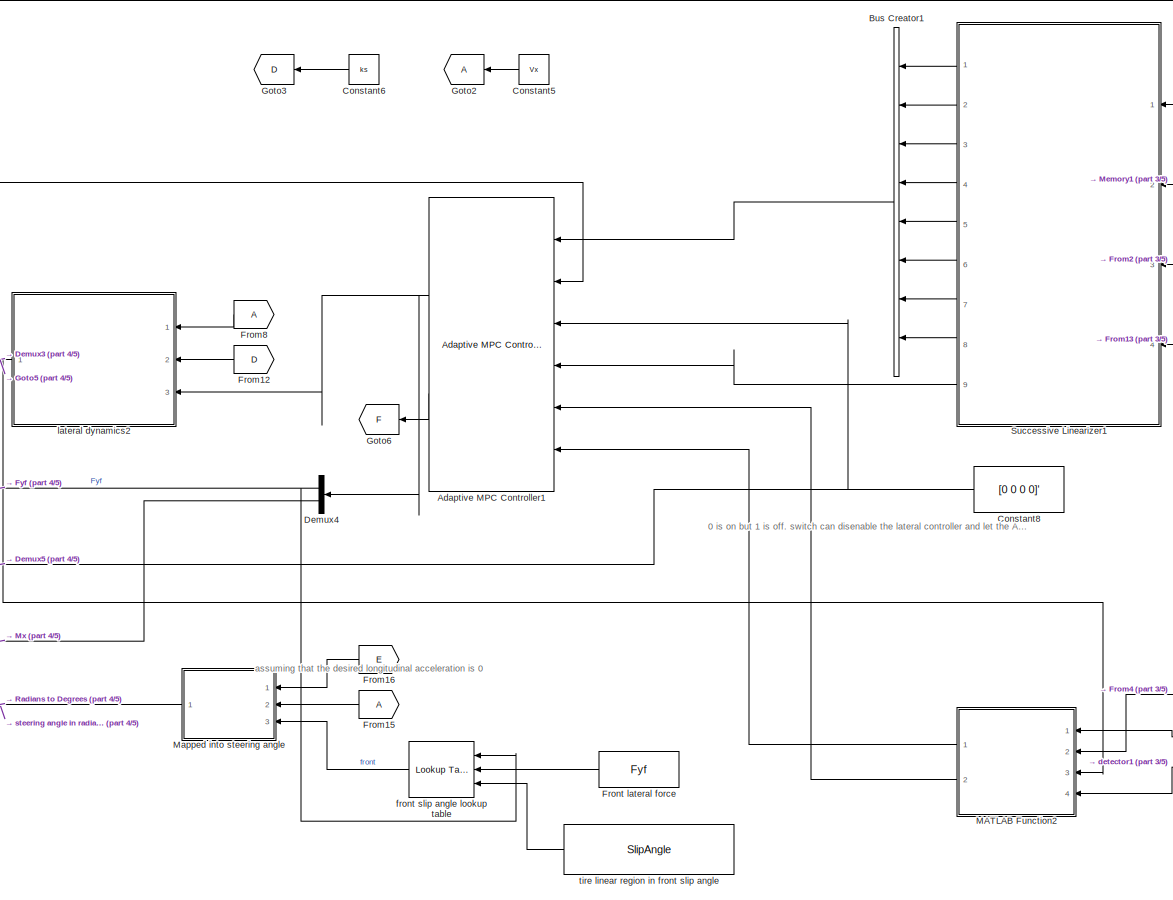
[diagram: root canvas - part 1/5, top right region]
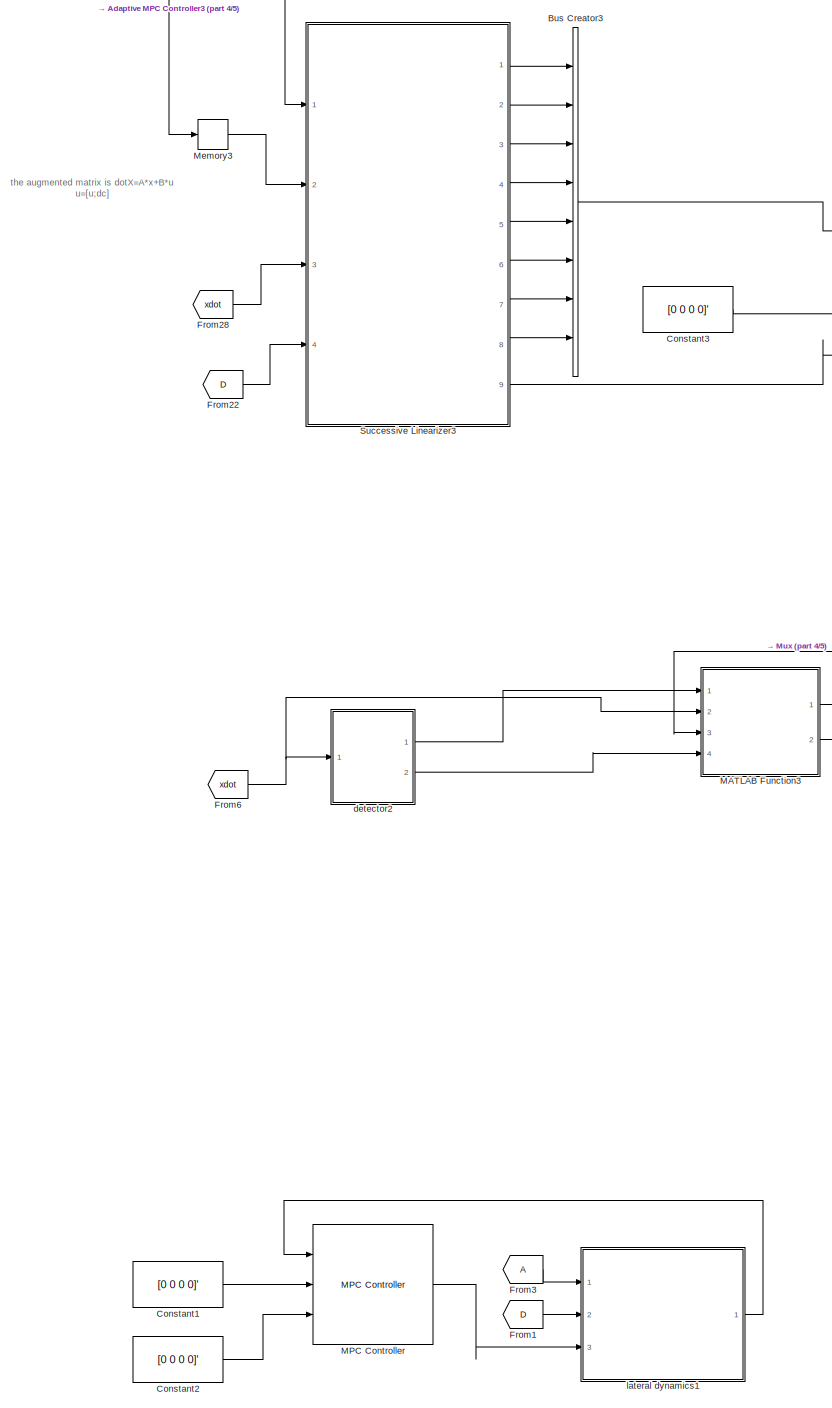
[diagram: root canvas - part 2/5, left side, full height]
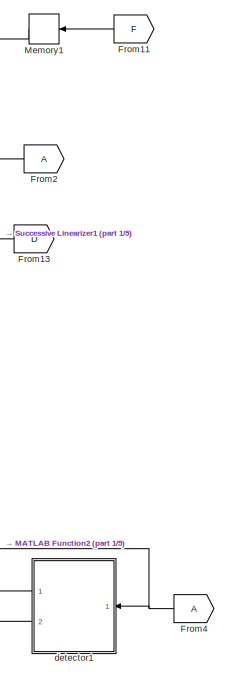
[diagram: root canvas - part 3/5, top right region]
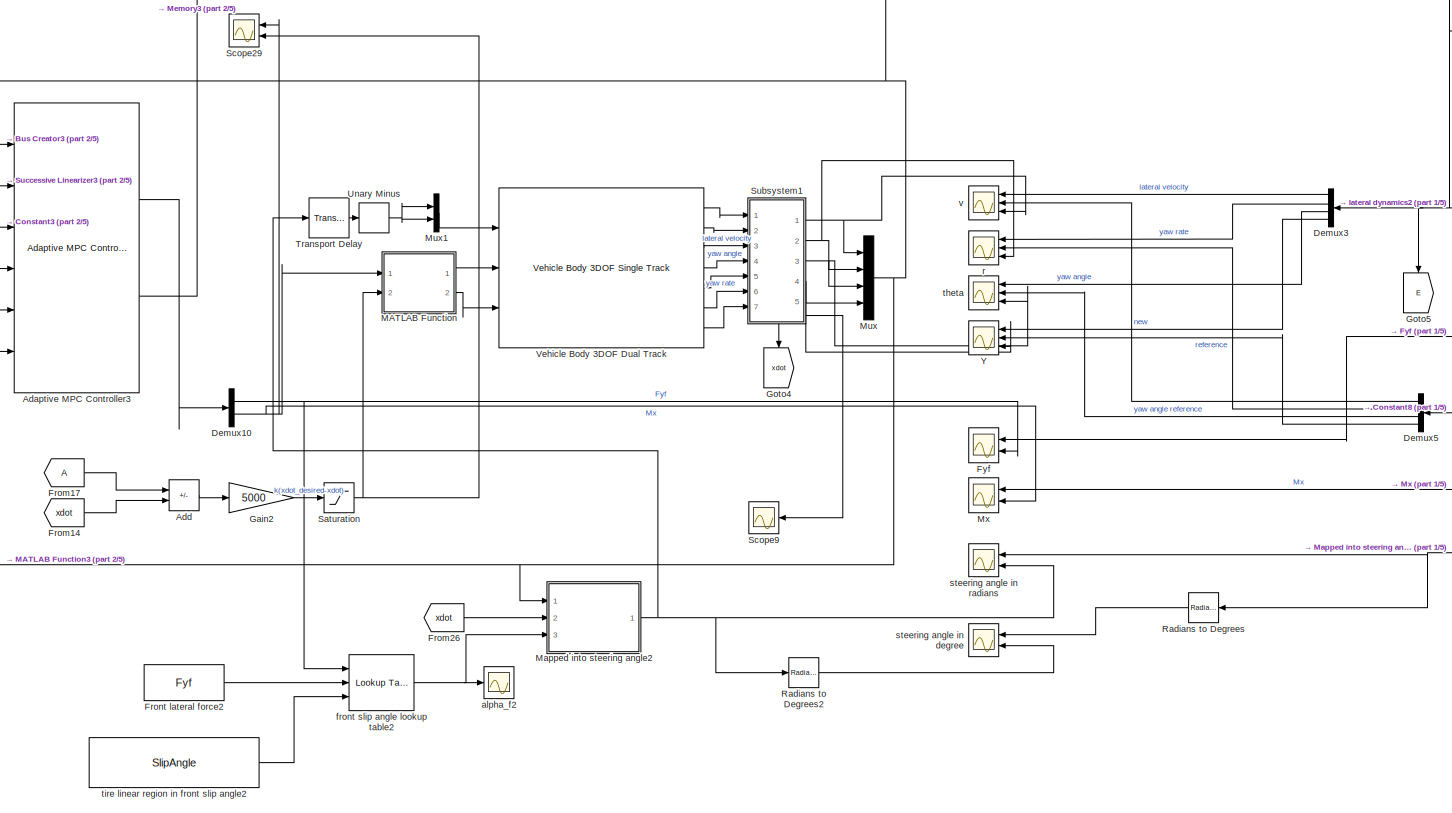
[diagram: root canvas - part 4/5, central region]
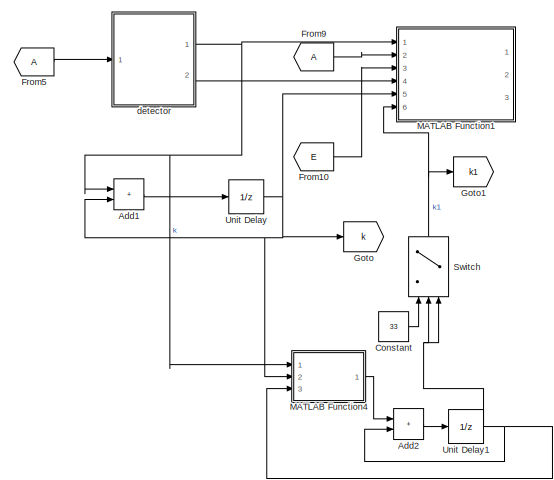
[diagram: root canvas - part 5/5, bottom center region]
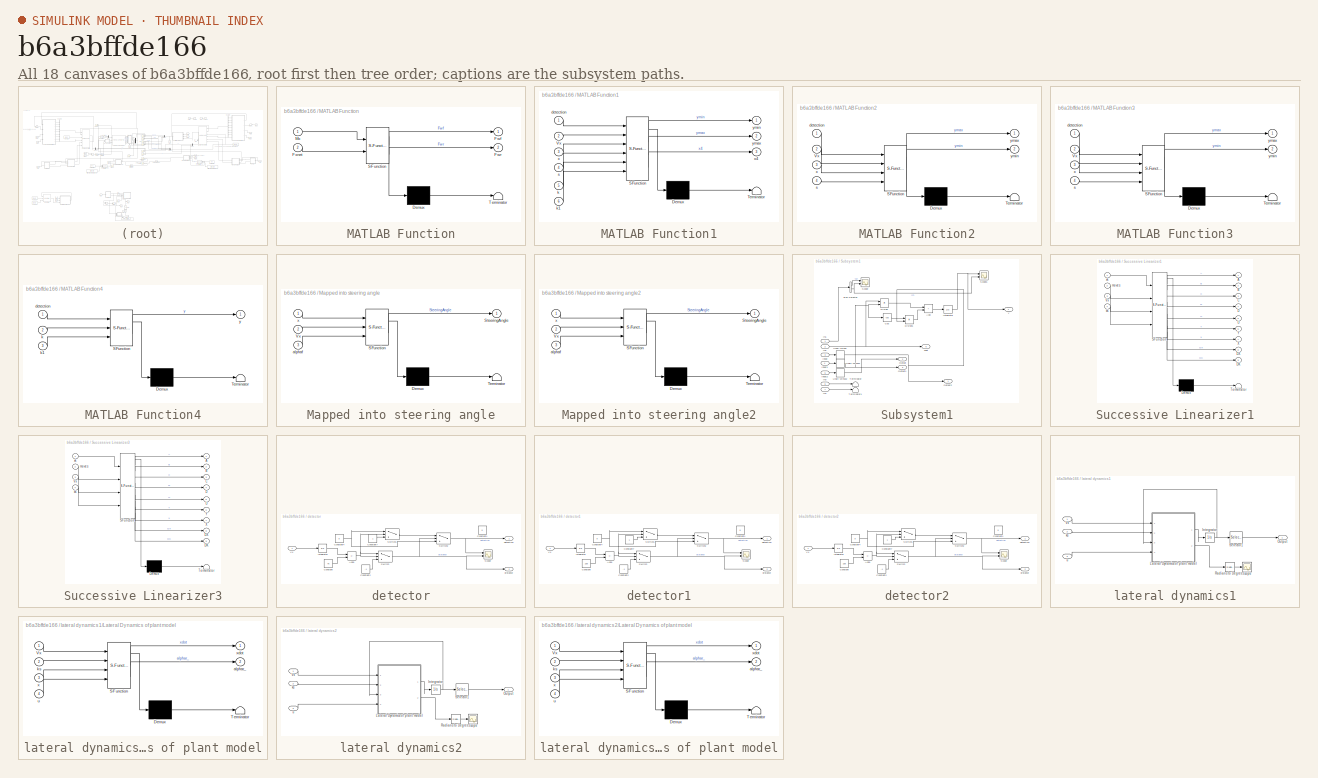
[diagram: thumbnail index - all 18 canvases of the model, root first then tree order]
MODEL slx_b6a3bffde166
KIND model
CONFIG AbsTol = auto
CONFIG EnableMultiTasking = off
CONFIG FixedStep = auto
CONFIG MaxStep = auto
CONFIG MinStep = auto
CONFIG RelTol = 1e-3
CONFIG SampleTimeConstraint = Unconstrained
CONFIG SolverName = VariableStepAuto
CONFIG StartTime = 0.0
CONFIG StopTime = 15
BLOCK [Reference] Adaptive MPC Controller1  REF=mpclib/Adaptive MPC Controller  (lib defined in mdl_ae329e0e0455)
  Ports = [6, 2]
  SCDEnableBlockLinearizationSpecification = on
  SourceBlock = mpclib/Adaptive MPC Controller
  SourceProductBaseCode = MP
  SourceType = Adaptive MPC
BLOCK [Reference] Adaptive MPC Controller3  REF=mpclib/Adaptive MPC Controller  (lib defined in mdl_ae329e0e0455)
  Ports = [6, 2]
  SCDEnableBlockLinearizationSpecification = on
  SourceBlock = mpclib/Adaptive MPC Controller
  SourceProductBaseCode = MP
  SourceType = Adaptive MPC
BLOCK [Sum] Add
  IconShape = rectangular
  Inputs = +-
  Ports = [2, 1]
BLOCK [Sum] Add1
  Commented = on
  IconShape = rectangular
  Ports = [2, 1]
BLOCK [Sum] Add2
  Commented = on
  IconShape = rectangular
  Ports = [2, 1]
BLOCK [BusCreator] Bus Creator1
  DisplayOption = bar
  InheritFromInputs = on
  Inputs = 8
  Ports = [8, 1]
BLOCK [BusCreator] Bus Creator3
  DisplayOption = bar
  InheritFromInputs = on
  Inputs = 8
  Ports = [8, 1]
BLOCK [Constant] Constant
  Commented = on
  Value = 33
BLOCK [Constant] Constant1
  Commented = on
  Value = [0 0 0 0]'
BLOCK [Constant] Constant2
  Commented = on
  Value = [0 0 0 0]'
BLOCK [Constant] Constant3
  Value = [0 0 0 0]'
BLOCK [Constant] Constant5
  Value = Vx
BLOCK [Constant] Constant6
  Value = ks
BLOCK [Constant] Constant8
  Value = [0 0 0 0]'
BLOCK [Demux] Demux10
  Outputs = 2
  Ports = [1, 2]
BLOCK [Demux] Demux3
  Ports = [1, 4]
BLOCK [Demux] Demux4
  Outputs = 2
  Ports = [1, 2]
BLOCK [Demux] Demux5
  Ports = [1, 4]
BLOCK [From] From1
  Commented = on
  GotoTag = D
BLOCK [From] From10
  Commented = on
  GotoTag = E
BLOCK [From] From11
  GotoTag = F
BLOCK [From] From12
  GotoTag = D
BLOCK [From] From13
  GotoTag = D
BLOCK [From] From14
  GotoTag = xdot
BLOCK [From] From15
BLOCK [From] From16
  GotoTag = E
BLOCK [From] From17
BLOCK [From] From2
BLOCK [From] From22
  GotoTag = D
BLOCK [From] From26
  GotoTag = xdot
BLOCK [From] From28
  GotoTag = xdot
BLOCK [From] From3
  Commented = on
BLOCK [From] From4
BLOCK [From] From5
  Commented = on
BLOCK [From] From6
  GotoTag = xdot
BLOCK [From] From8
BLOCK [From] From9
  Commented = on
BLOCK [Constant] Front lateral force
  Value = Fyf
BLOCK [Constant] Front lateral force2
  Value = Fyf
BLOCK [Scope] Fyf
  Floating = off
  NumInputPorts = 2
  Ports = [2]
  ScopeSpecificationString = Simulink.scopes.TimeScopeBlockCfg('CurrentConfiguration', extmgr.ConfigurationSet(extmgr.Configuration('Core','General UI',true),extmgr.Configuration('Core','Source UI',true),extmgr.Configuration('Sources','WiredSimulink',true,'DataLoggingVariableName','ScopeData2'),extmgr.Configuration('Visuals','Time Domain',true,'SerializedDisplays',{struct('MinYLimReal','-12500.00000','MaxYLimReal','12500.0000...<+1474ch>
BLOCK [Gain] Gain2
  Gain = 5000
BLOCK [Goto] Goto
  Commented = on
  GotoTag = k
BLOCK [Goto] Goto1
  Commented = on
  GotoTag = k1
BLOCK [Goto] Goto2
BLOCK [Goto] Goto3
  GotoTag = D
BLOCK [Goto] Goto4
  GotoTag = xdot
  NameLocation = left
BLOCK [Goto] Goto5
  GotoTag = E
  NameLocation = left
BLOCK [Goto] Goto6
  GotoTag = F
BLOCK [SubSystem] MATLAB Function
  ErrorFcn = Stateflow.Translate.translate
  PermitHierarchicalResolution = ExplicitOnly
  Ports = [2, 2]
  RequestExecContextInheritance = off
  SFBlockType = MATLAB Function
  TreatAsAtomicUnit = on
BLOCK [Demux] MATLAB Function/ Demux 
  Outputs = 1
  Ports = [1, 1]
BLOCK [S-Function] MATLAB Function/ SFunction 
  EnableBusSupport = on
  FunctionName = sf_sfun
  PortCounts = [2 3]
  Ports = [2, 3]
  SFcnIsStateOwnerBlock = off
  SFunctionDeploymentMode = off
  Tag = Stateflow S-Function 16
BLOCK [Terminator] MATLAB Function/ Terminator 
BLOCK [Outport] MATLAB Function/Fwf
BLOCK [Outport] MATLAB Function/Fwr
  Port = 2
BLOCK [Inport] MATLAB Function/Fxnet
  Port = 2
BLOCK [Inport] MATLAB Function/Mx
BLOCK [SubSystem] MATLAB Function1
  Commented = on
  ErrorFcn = Stateflow.Translate.translate
  PermitHierarchicalResolution = ExplicitOnly
  Ports = [6, 3]
  RequestExecContextInheritance = off
  SFBlockType = MATLAB Function
  TreatAsAtomicUnit = on
BLOCK [Demux] MATLAB Function1/ Demux 
  Outputs = 1
  Ports = [1, 1]
BLOCK [S-Function] MATLAB Function1/ SFunction 
  EnableBusSupport = on
  FunctionName = sf_sfun
  PortCounts = [6 4]
  Ports = [6, 4]
  SFcnIsStateOwnerBlock = off
  SFunctionDeploymentMode = off
  Tag = Stateflow S-Function 4
BLOCK [Terminator] MATLAB Function1/ Terminator 
BLOCK [Inport] MATLAB Function1/Vx
  Port = 2
BLOCK [Inport] MATLAB Function1/detection
BLOCK [Inport] MATLAB Function1/k
  Port = 5
BLOCK [Inport] MATLAB Function1/k1
  Port = 6
BLOCK [Inport] MATLAB Function1/s
  Port = 4
BLOCK [Inport] MATLAB Function1/x
  Port = 3
BLOCK [Outport] MATLAB Function1/x4
  Port = 3
BLOCK [Outport] MATLAB Function1/ymax
  Port = 2
BLOCK [Outport] MATLAB Function1/ymin
BLOCK [SubSystem] MATLAB Function2
  ErrorFcn = Stateflow.Translate.translate
  PermitHierarchicalResolution = ExplicitOnly
  Ports = [4, 2]
  RequestExecContextInheritance = off
  SFBlockType = MATLAB Function
  TreatAsAtomicUnit = on
BLOCK [Demux] MATLAB Function2/ Demux 
  Outputs = 1
  Ports = [1, 1]
BLOCK [S-Function] MATLAB Function2/ SFunction 
  EnableBusSupport = on
  FunctionName = sf_sfun
  Parameters = PredictionHorizon,Ts
  PortCounts = [4 3]
  Ports = [4, 3]
  SFcnIsStateOwnerBlock = off
  SFunctionDeploymentMode = off
  Tag = Stateflow S-Function 2
BLOCK [Terminator] MATLAB Function2/ Terminator 
BLOCK [Inport] MATLAB Function2/Vx
  Port = 2
BLOCK [Inport] MATLAB Function2/detection
BLOCK [Inport] MATLAB Function2/s
  Port = 4
BLOCK [Inport] MATLAB Function2/x
  Port = 3
BLOCK [Outport] MATLAB Function2/ymax
BLOCK [Outport] MATLAB Function2/ymin
  Port = 2
BLOCK [SubSystem] MATLAB Function3
  ErrorFcn = Stateflow.Translate.translate
  PermitHierarchicalResolution = ExplicitOnly
  Ports = [4, 2]
  RequestExecContextInheritance = off
  SFBlockType = MATLAB Function
  TreatAsAtomicUnit = on
BLOCK [Demux] MATLAB Function3/ Demux 
  Outputs = 1
  Ports = [1, 1]
BLOCK [S-Function] MATLAB Function3/ SFunction 
  EnableBusSupport = on
  FunctionName = sf_sfun
  Parameters = PredictionHorizon,Ts
  PortCounts = [4 3]
  Ports = [4, 3]
  SFcnIsStateOwnerBlock = off
  SFunctionDeploymentMode = off
  Tag = Stateflow S-Function 3
BLOCK [Terminator] MATLAB Function3/ Terminator 
BLOCK [Inport] MATLAB Function3/Vx
  Port = 2
BLOCK [Inport] MATLAB Function3/detection
BLOCK [Inport] MATLAB Function3/s
  Port = 4
BLOCK [Inport] MATLAB Function3/x
  Port = 3
BLOCK [Outport] MATLAB Function3/ymax
BLOCK [Outport] MATLAB Function3/ymin
  Port = 2
BLOCK [SubSystem] MATLAB Function4
  Commented = on
  ErrorFcn = Stateflow.Translate.translate
  PermitHierarchicalResolution = ExplicitOnly
  Ports = [3, 1]
  RequestExecContextInheritance = off
  SFBlockType = MATLAB Function
  TreatAsAtomicUnit = on
BLOCK [Demux] MATLAB Function4/ Demux 
  Outputs = 1
  Ports = [1, 1]
BLOCK [S-Function] MATLAB Function4/ SFunction 
  EnableBusSupport = on
  FunctionName = sf_sfun
  PortCounts = [3 2]
  Ports = [3, 2]
  SFcnIsStateOwnerBlock = off
  SFunctionDeploymentMode = off
  Tag = Stateflow S-Function 7
BLOCK [Terminator] MATLAB Function4/ Terminator 
BLOCK [Inport] MATLAB Function4/detection
BLOCK [Inport] MATLAB Function4/k
  Port = 2
BLOCK [Inport] MATLAB Function4/k1
  Port = 3
BLOCK [Outport] MATLAB Function4/y
BLOCK [Reference] MPC Controller  REF=mpclib/MPC Controller  (lib defined in mdl_ae329e0e0455)
  Commented = on
  Ports = [3, 1]
  SCDEnableBlockLinearizationSpecification = on
  SourceBlock = mpclib/MPC Controller
  SourceProductBaseCode = MP
  SourceType = MPC
BLOCK [SubSystem] Mapped into steering angle
  ErrorFcn = Stateflow.Translate.translate
  PermitHierarchicalResolution = ExplicitOnly
  Ports = [3, 1]
  RequestExecContextInheritance = off
  SFBlockType = MATLAB Function
  TreatAsAtomicUnit = on
BLOCK [Demux] Mapped into steering angle/ Demux 
  Outputs = 1
  Ports = [1, 1]
BLOCK [S-Function] Mapped into steering angle/ SFunction 
  EnableBusSupport = on
  FunctionName = sf_sfun
  PortCounts = [3 2]
  Ports = [3, 2]
  SFcnIsStateOwnerBlock = off
  SFunctionDeploymentMode = off
  Tag = Stateflow S-Function 11
BLOCK [Terminator] Mapped into steering angle/ Terminator 
BLOCK [Outport] Mapped into steering angle/SteeringAngle
BLOCK [Inport] Mapped into steering angle/Vx
  Port = 2
BLOCK [Inport] Mapped into steering angle/alphaf
  Port = 3
BLOCK [Inport] Mapped into steering angle/x
BLOCK [SubSystem] Mapped into steering angle2
  ErrorFcn = Stateflow.Translate.translate
  PermitHierarchicalResolution = ExplicitOnly
  Ports = [3, 1]
  RequestExecContextInheritance = off
  SFBlockType = MATLAB Function
  TreatAsAtomicUnit = on
BLOCK [Demux] Mapped into steering angle2/ Demux 
  Outputs = 1
  Ports = [1, 1]
BLOCK [S-Function] Mapped into steering angle2/ SFunction 
  EnableBusSupport = on
  FunctionName = sf_sfun
  PortCounts = [3 2]
  Ports = [3, 2]
  SFcnIsStateOwnerBlock = off
  SFunctionDeploymentMode = off
  Tag = Stateflow S-Function 13
BLOCK [Terminator] Mapped into steering angle2/ Terminator 
BLOCK [Outport] Mapped into steering angle2/SteeringAngle
BLOCK [Inport] Mapped into steering angle2/Vx
  Port = 2
BLOCK [Inport] Mapped into steering angle2/alphaf
  Port = 3
BLOCK [Inport] Mapped into steering angle2/x
BLOCK [Memory] Memory1
BLOCK [Memory] Memory3
BLOCK [Mux] Mux
  DisplayOption = bar
  Ports = [4, 1]
BLOCK [Mux] Mux1
  DisplayOption = bar
  Inputs = 2
  Ports = [2, 1]
BLOCK [Scope] Mx
  Floating = off
  NumInputPorts = 2
  Ports = [2]
  ScopeSpecificationString = Simulink.scopes.TimeScopeBlockCfg('CurrentConfiguration', extmgr.ConfigurationSet(extmgr.Configuration('Core','General UI',true),extmgr.Configuration('Core','Source UI',true),extmgr.Configuration('Sources','WiredSimulink',true,'DataLoggingVariableName','ScopeData4'),extmgr.Configuration('Visuals','Time Domain',true,'SerializedDisplays',{struct('MinYLimReal','-46.82042','MaxYLimReal','13.56825','YL...<+1815ch>
BLOCK [Reference] Radians to Degrees  REF=simulink_extras/Transformations/Radians
to Degrees
  Ports = [1, 1]
  SourceBlock = simulink_extras/Transformations/Radians\nto Degrees
  SourceProductBaseCode = SL
  SourceType = RadiansToDegrees
BLOCK [Reference] Radians to Degrees2  REF=simulink_extras/Transformations/Radians
to Degrees
  Ports = [1, 1]
  SourceBlock = simulink_extras/Transformations/Radians\nto Degrees
  SourceProductBaseCode = SL
  SourceType = RadiansToDegrees
BLOCK [Saturate] Saturation
  LowerLimit = -1000
  UpperLimit = 1000
BLOCK [Scope] Scope29
  Floating = off
  NumInputPorts = 2
  Ports = [2]
  ScopeSpecificationString = Simulink.scopes.TimeScopeBlockCfg('CurrentConfiguration', extmgr.ConfigurationSet(extmgr.Configuration('Core','General UI',true),extmgr.Configuration('Core','Source UI',true),extmgr.Configuration('Sources','WiredSimulink',true,'DataLoggingVariableName','ScopeData6'),extmgr.Configuration('Visuals','Time Domain',true,'SerializedDisplays',{struct('MinYLimReal','-128.74862','MaxYLimReal','753.41489','...<+1759ch>
BLOCK [Scope] Scope9
  Floating = off
  NumInputPorts = 1
  Ports = [1]
  ScopeSpecificationString = Simulink.scopes.TimeScopeBlockCfg('CurrentConfiguration', extmgr.ConfigurationSet(extmgr.Configuration('Core','General UI',true),extmgr.Configuration('Core','Source UI',true),extmgr.Configuration('Sources','WiredSimulink',true,'DataLoggingVariableName','ScopeData10'),extmgr.Configuration('Visuals','Time Domain',true,'SerializedDisplays',{struct('MinYLimReal','14.85033','MaxYLimReal','15.01663','YL...<+1711ch>
BLOCK [SubSystem] Subsystem1
  PortSchema = {"entries":[{"content":{"sides":[{"content":{"connectorIds":["In1","In2","In3","In4","In5","In6","In7"]},"type":"ConnectorPlacement.EquallySpacedRectSide","uuid":"2d5dd366-cf22-44c4-87a2-f50a57f797af"},{"content":{"connectorIds":["Out1","Out2","Out3","Out4"],"side":"RIGHT"},"type":"ConnectorPlacement.EquallySpacedRectSide","uuid":"241189f4-e75c-43e7-8a99-abbcb9c74d53"},{"content":{"connectorIds":[...<+447ch>
  Ports = [7, 5]
  RequestExecContextInheritance = off
BLOCK [Sum] Subsystem1/Add
  IconShape = rectangular
  Ports = [2, 1]
BLOCK [BusSelector] Subsystem1/Bus Selector
  OutputSignals = InertFrm.Cg.Disp.X,InertFrm.Cg.Disp.Y
  Ports = [1, 2]
BLOCK [Trigonometry] Subsystem1/Cos
  Operator = cos
  Ports = [1, 1]
BLOCK [Product] Subsystem1/Divide
  Inputs = **
  Ports = [2, 1]
BLOCK [Product] Subsystem1/Divide1
  Inputs = **
  Ports = [2, 1]
BLOCK [Inport] Subsystem1/In1
BLOCK [Inport] Subsystem1/In2
  Port = 2
BLOCK [Inport] Subsystem1/In3
  Port = 6
BLOCK [Inport] Subsystem1/In4
  Port = 7
BLOCK [Inport] Subsystem1/Input
  Port = 3
BLOCK [Inport] Subsystem1/Input1
  Port = 4
BLOCK [Inport] Subsystem1/Input2
  Port = 5
BLOCK [Integrator] Subsystem1/Integrator
  Ports = [1, 1]
BLOCK [Outport] Subsystem1/Output
  Port = 2
BLOCK [Outport] Subsystem1/Output1
  Port = 3
BLOCK [Outport] Subsystem1/Output2
BLOCK [Scope] Subsystem1/Scope
  Floating = off
  NumInputPorts = 2
  Ports = [2]
  ScopeSpecificationString = Simulink.scopes.TimeScopeBlockCfg('CurrentConfiguration', extmgr.ConfigurationSet(extmgr.Configuration('Core','General UI',true),extmgr.Configuration('Core','Source UI',true),extmgr.Configuration('Sources','WiredSimulink',true,'DataLoggingVariableName','ScopeData1'),extmgr.Configuration('Visuals','Time Domain',true),extmgr.Configuration('Tools','Plot Navigation',true),extmgr.Configuration('Tools',...<+40ch>
BLOCK [Scope] Subsystem1/Scope1
  Floating = off
  NumInputPorts = 2
  Ports = [2]
  ScopeSpecificationString = Simulink.scopes.TimeScopeBlockCfg('CurrentConfiguration', extmgr.ConfigurationSet(extmgr.Configuration('Core','General UI',true),extmgr.Configuration('Core','Source UI',true),extmgr.Configuration('Sources','WiredSimulink',true,'DataLoggingVariableName','ScopeData2'),extmgr.Configuration('Visuals','Time Domain',true,'SerializedDisplays',{struct('MinYLimReal','-0.42889','MaxYLimReal','3.86001','YLab...<+1407ch>
BLOCK [Terminator] Subsystem1/Terminator
BLOCK [Terminator] Subsystem1/Terminator1
BLOCK [UnaryMinus] Subsystem1/Unary Minus
BLOCK [UnaryMinus] Subsystem1/Unary Minus1
BLOCK [UnaryMinus] Subsystem1/Unary Minus2
BLOCK [Outport] Subsystem1/Y
  Port = 4
  SampleTime = Ts
  VarSizeSig = No
BLOCK [Outport] Subsystem1/xdot
  Port = 5
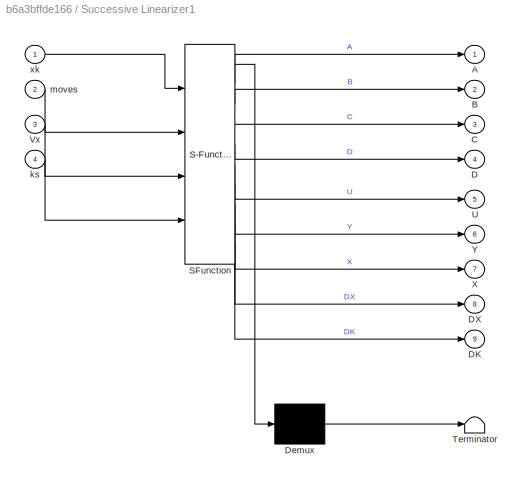
BLOCK [SubSystem] Successive Linearizer1
  ErrorFcn = Stateflow.Translate.translate
  PermitHierarchicalResolution = ExplicitOnly
  Ports = [4, 9]
  RequestExecContextInheritance = off
  SFBlockType = MATLAB Function
  TreatAsAtomicUnit = on
BLOCK [Demux] Successive Linearizer1/ Demux 
  Outputs = 1
  Ports = [1, 1]
BLOCK [S-Function] Successive Linearizer1/ SFunction 
  EnableBusSupport = on
  FunctionName = sf_sfun
  Parameters = PredictionHorizon,Ts
  PortCounts = [4 10]
  Ports = [4, 10]
  SFcnIsStateOwnerBlock = off
  SFunctionDeploymentMode = off
  Tag = Stateflow S-Function 5
BLOCK [Terminator] Successive Linearizer1/ Terminator 
BLOCK [Outport] Successive Linearizer1/A
BLOCK [Outport] Successive Linearizer1/B
  Port = 2
BLOCK [Outport] Successive Linearizer1/C
  Port = 3
BLOCK [Outport] Successive Linearizer1/D
  Port = 4
BLOCK [Outport] Successive Linearizer1/DK
  Port = 9
BLOCK [Outport] Successive Linearizer1/DX
  Port = 8
BLOCK [Outport] Successive Linearizer1/U
  Port = 5
BLOCK [Inport] Successive Linearizer1/Vx
  Port = 3
BLOCK [Outport] Successive Linearizer1/X
  Port = 7
BLOCK [Outport] Successive Linearizer1/Y
  Port = 6
BLOCK [Inport] Successive Linearizer1/ks
  Port = 4
BLOCK [Inport] Successive Linearizer1/moves
  Port = 2
BLOCK [Inport] Successive Linearizer1/xk
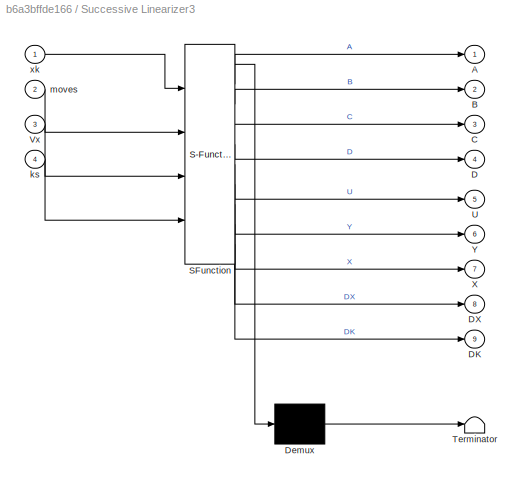
BLOCK [SubSystem] Successive Linearizer3
  ErrorFcn = Stateflow.Translate.translate
  PermitHierarchicalResolution = ExplicitOnly
  Ports = [4, 9]
  RequestExecContextInheritance = off
  SFBlockType = MATLAB Function
  TreatAsAtomicUnit = on
BLOCK [Demux] Successive Linearizer3/ Demux 
  Outputs = 1
  Ports = [1, 1]
BLOCK [S-Function] Successive Linearizer3/ SFunction 
  EnableBusSupport = on
  FunctionName = sf_sfun
  Parameters = PredictionHorizon,Ts
  PortCounts = [4 10]
  Ports = [4, 10]
  SFcnIsStateOwnerBlock = off
  SFunctionDeploymentMode = off
  Tag = Stateflow S-Function 14
BLOCK [Terminator] Successive Linearizer3/ Terminator 
BLOCK [Outport] Successive Linearizer3/A
BLOCK [Outport] Successive Linearizer3/B
  Port = 2
BLOCK [Outport] Successive Linearizer3/C
  Port = 3
BLOCK [Outport] Successive Linearizer3/D
  Port = 4
BLOCK [Outport] Successive Linearizer3/DK
  Port = 9
BLOCK [Outport] Successive Linearizer3/DX
  Port = 8
BLOCK [Outport] Successive Linearizer3/U
  Port = 5
BLOCK [Inport] Successive Linearizer3/Vx
  Port = 3
BLOCK [Outport] Successive Linearizer3/X
  Port = 7
BLOCK [Outport] Successive Linearizer3/Y
  Port = 6
BLOCK [Inport] Successive Linearizer3/ks
  Port = 4
BLOCK [Inport] Successive Linearizer3/moves
  Port = 2
BLOCK [Inport] Successive Linearizer3/xk
BLOCK [Switch] Switch
  Commented = on
  InputSameDT = off
  NameLocation = right
  SaturateOnIntegerOverflow = off
  Threshold = 33
BLOCK [TransportDelay] Transport Delay
  DelayTime = Ts
  Ports = [1, 1]
BLOCK [UnaryMinus] Unary Minus
BLOCK [UnitDelay] Unit Delay
  Commented = on
  HasFrameUpgradeWarning = on
  SampleTime = -1
BLOCK [UnitDelay] Unit Delay1
  Commented = on
  HasFrameUpgradeWarning = on
  SampleTime = -1
BLOCK [Reference] Vehicle Body 3DOF Dual Track  REF=autolibshared/Vehicle Body 3DOF Single Track
  Ports = [3, 7]
  SourceBlock = autolibshared/Vehicle Body 3DOF Single Track
  SourceProductBaseCode = PW,DR,MT,UV,VE
  SourceType = Vehicle Body 3DOF Lateral
BLOCK [Scope] Y
  Floating = off
  NameLocation = left
  NumInputPorts = 3
  Ports = [3]
  ScopeSpecificationString = Simulink.scopes.TimeScopeBlockCfg('CurrentConfiguration', extmgr.ConfigurationSet(extmgr.Configuration('Core','General UI',true),extmgr.Configuration('Core','Source UI',true),extmgr.Configuration('Sources','WiredSimulink',true,'DataLoggingVariableName','ScopeData11'),extmgr.Configuration('Visuals','Time Domain',true,'SerializedDisplays',{struct('MinYLimReal','-0.51615','MaxYLimReal','4.64535','YLa...<+1560ch>
BLOCK [Scope] alpha_f2
  Floating = off
  NumInputPorts = 1
  Ports = [1]
  ScopeSpecificationString = Simulink.scopes.TimeScopeBlockCfg('CurrentConfiguration', extmgr.ConfigurationSet(extmgr.Configuration('Core','General UI',true),extmgr.Configuration('Core','Source UI',true),extmgr.Configuration('Sources','WiredSimulink',true,'DataLoggingVariableName','ScopeData13'),extmgr.Configuration('Visuals','Time Domain',true,'SerializedDisplays',{struct('MinYLimReal','-0.05213','MaxYLimReal','0.07044','YLa...<+1488ch>
BLOCK [SubSystem] detector
  Commented = on
  Ports = [1, 2]
  RequestExecContextInheritance = off
BLOCK [Sum] detector/Add1
  IconShape = rectangular
  Inputs = -+
  Ports = [2, 1]
BLOCK [Constant] detector/Constant
  Value = 75
BLOCK [Constant] detector/Constant1
  Commented = on
  Value = 0
BLOCK [Constant] detector/Constant2
  Value = -1
BLOCK [Constant] detector/Constant4
  Value = 0
BLOCK [Constant] detector/Constant7
BLOCK [Integrator] detector/Integrator
  Ports = [1, 1]
BLOCK [Scope] detector/Scope
  Floating = off
  NumInputPorts = 2
  Ports = [2]
  ScopeSpecificationString = Simulink.scopes.TimeScopeBlockCfg('CurrentConfiguration', extmgr.ConfigurationSet(extmgr.Configuration('Core','General UI',true),extmgr.Configuration('Core','Source UI',true),extmgr.Configuration('Sources','WiredSimulink',true),extmgr.Configuration('Visuals','Time Domain',true,'SerializedDisplays',{struct('MinYLimReal','-0.125','MaxYLimReal','1.125','YLabelReal','','MinYLimMag','0.00000','MaxYLimM...<+1985ch>  <repeated x3 — deduplicated; at blocks: Scope>
BLOCK [Switch] detector/Switch
  Criteria = u2 > Threshold
  InputSameDT = off
  SaturateOnIntegerOverflow = off
BLOCK [Switch] detector/Switch1
  Criteria = u2 > Threshold
  InputSameDT = off
  SaturateOnIntegerOverflow = off
  Threshold = 50
BLOCK [Switch] detector/Switch2
  Criteria = u2 > Threshold
  InputSameDT = off
  SaturateOnIntegerOverflow = off
BLOCK [Inport] detector/Vx
BLOCK [Outport] detector/detection
BLOCK [Outport] detector/distance
  Port = 2
BLOCK [SubSystem] detector1
  Ports = [1, 2]
  RequestExecContextInheritance = off
BLOCK [Sum] detector1/Add1
  IconShape = rectangular
  Inputs = -+
  Ports = [2, 1]
BLOCK [Constant] detector1/Constant
  Value = 105
BLOCK [Constant] detector1/Constant1
  Commented = on
  Value = 0
BLOCK [Constant] detector1/Constant2
  Value = -1
BLOCK [Constant] detector1/Constant4
  Value = 0
BLOCK [Constant] detector1/Constant7
BLOCK [Integrator] detector1/Integrator
  Ports = [1, 1]
BLOCK [Scope] detector1/Scope
  Floating = off
  NumInputPorts = 2
  Ports = [2]
BLOCK [Switch] detector1/Switch
  Criteria = u2 > Threshold
  InputSameDT = off
  SaturateOnIntegerOverflow = off
BLOCK [Switch] detector1/Switch1
  Criteria = u2 > Threshold
  InputSameDT = off
  SaturateOnIntegerOverflow = off
  Threshold = 30
BLOCK [Switch] detector1/Switch2
  Criteria = u2 > Threshold
  InputSameDT = off
  SaturateOnIntegerOverflow = off
BLOCK [Inport] detector1/Vx
BLOCK [Outport] detector1/detection
BLOCK [Outport] detector1/distance
  Port = 2
BLOCK [SubSystem] detector2
  Ports = [1, 2]
  RequestExecContextInheritance = off
BLOCK [Sum] detector2/Add1
  IconShape = rectangular
  Inputs = -+
  Ports = [2, 1]
BLOCK [Constant] detector2/Constant
  Value = 105
BLOCK [Constant] detector2/Constant1
  Commented = on
  Value = 0
BLOCK [Constant] detector2/Constant2
  Value = -1
BLOCK [Constant] detector2/Constant4
  Value = 0
BLOCK [Constant] detector2/Constant7
BLOCK [Integrator] detector2/Integrator
  Ports = [1, 1]
BLOCK [Scope] detector2/Scope
  Floating = off
  NumInputPorts = 2
  Ports = [2]
BLOCK [Switch] detector2/Switch
  Criteria = u2 > Threshold
  InputSameDT = off
  SaturateOnIntegerOverflow = off
BLOCK [Switch] detector2/Switch1
  Criteria = u2 > Threshold
  InputSameDT = off
  SaturateOnIntegerOverflow = off
  Threshold = 30
BLOCK [Switch] detector2/Switch2
  Criteria = u2 > Threshold
  InputSameDT = off
  SaturateOnIntegerOverflow = off
BLOCK [Inport] detector2/Vx
BLOCK [Outport] detector2/detection
BLOCK [Outport] detector2/distance
  Port = 2
BLOCK [Reference] front slip angle lookup table  REF=simulink/Lookup
Tables/Lookup
Table
Dynamic
  Ports = [3, 1]
  SourceBlock = simulink/Lookup\nTables/Lookup\nTable\nDynamic
  SourceProductBaseCode = SL
  SourceType = Lookup Table Dynamic
BLOCK [Reference] front slip angle lookup table2  REF=simulink/Lookup
Tables/Lookup
Table
Dynamic
  Ports = [3, 1]
  SourceBlock = simulink/Lookup\nTables/Lookup\nTable\nDynamic
  SourceProductBaseCode = SL
  SourceType = Lookup Table Dynamic
BLOCK [SubSystem] lateral dynamics1
  Commented = on
  Ports = [3, 1]
  RequestExecContextInheritance = off
BLOCK [Integrator] lateral dynamics1/Integrator
  Ports = [1, 1]
BLOCK [SubSystem] lateral dynamics1/Lateral Dynamics of plant model
  ErrorFcn = Stateflow.Translate.translate
  PermitHierarchicalResolution = ExplicitOnly
  Ports = [4, 2]
  RequestExecContextInheritance = off
  SFBlockType = MATLAB Function
  TreatAsAtomicUnit = on
BLOCK [Demux] lateral dynamics1/Lateral Dynamics of plant model/ Demux 
  Outputs = 1
  Ports = [1, 1]
BLOCK [S-Function] lateral dynamics1/Lateral Dynamics of plant model/ SFunction 
  EnableBusSupport = on
  FunctionName = sf_sfun
  PortCounts = [4 3]
  Ports = [4, 3]
  SFcnIsStateOwnerBlock = off
  SFunctionDeploymentMode = off
  Tag = Stateflow S-Function 1
BLOCK [Terminator] lateral dynamics1/Lateral Dynamics of plant model/ Terminator 
BLOCK [Inport] lateral dynamics1/Lateral Dynamics of plant model/Vx
BLOCK [Outport] lateral dynamics1/Lateral Dynamics of plant model/alphar_
  Port = 2
BLOCK [Inport] lateral dynamics1/Lateral Dynamics of plant model/ks
  Port = 2
BLOCK [Inport] lateral dynamics1/Lateral Dynamics of plant model/u
  Port = 4
BLOCK [Inport] lateral dynamics1/Lateral Dynamics of plant model/x
  Port = 3
BLOCK [Outport] lateral dynamics1/Lateral Dynamics of plant model/xdot
BLOCK [Outport] lateral dynamics1/Output
BLOCK [Reference] lateral dynamics1/Radians to Degrees  REF=simulink_extras/Transformations/Radians
to Degrees
  Ports = [1, 1]
  SourceBlock = simulink_extras/Transformations/Radians\nto Degrees
  SourceProductBaseCode = SL
  SourceType = RadiansToDegrees
BLOCK [Scope] lateral dynamics1/Scope
  Floating = off
  NumInputPorts = 1
  Ports = [1]
  ScopeSpecificationString = Simulink.scopes.TimeScopeBlockCfg('CurrentConfiguration', extmgr.ConfigurationSet(extmgr.Configuration('Core','General UI',true),extmgr.Configuration('Core','Source UI',true),extmgr.Configuration('Sources','WiredSimulink',true,'DataLoggingVariableName','ScopeData1'),extmgr.Configuration('Visuals','Time Domain',true,'SerializedDisplays',{struct('MinYLimReal','-0.89178','MaxYLimReal','0.67452','YLab...<+1377ch>
BLOCK [Selector] lateral dynamics1/Selector1
  IndexOptions = Index vector (dialog)
  Indices = [1 2 3 4]
  InputPortWidth = 4
  OutputSizes = 1
  Ports = [1, 1]
BLOCK [Inport] lateral dynamics1/Vx
BLOCK [Inport] lateral dynamics1/ks
  Port = 2
BLOCK [Inport] lateral dynamics1/u
  Port = 3
BLOCK [SubSystem] lateral dynamics2
  Ports = [3, 1]
  RequestExecContextInheritance = off
BLOCK [Integrator] lateral dynamics2/Integrator
  Ports = [1, 1]
BLOCK [SubSystem] lateral dynamics2/Lateral Dynamics of plant model
  ErrorFcn = Stateflow.Translate.translate
  PermitHierarchicalResolution = ExplicitOnly
  Ports = [4, 2]
  RequestExecContextInheritance = off
  SFBlockType = MATLAB Function
  TreatAsAtomicUnit = on
BLOCK [Demux] lateral dynamics2/Lateral Dynamics of plant model/ Demux 
  Outputs = 1
  Ports = [1, 1]
BLOCK [S-Function] lateral dynamics2/Lateral Dynamics of plant model/ SFunction 
  EnableBusSupport = on
  FunctionName = sf_sfun
  PortCounts = [4 3]
  Ports = [4, 3]
  SFcnIsStateOwnerBlock = off
  SFunctionDeploymentMode = off
  Tag = Stateflow S-Function 6
BLOCK [Terminator] lateral dynamics2/Lateral Dynamics of plant model/ Terminator 
BLOCK [Inport] lateral dynamics2/Lateral Dynamics of plant model/Vx
BLOCK [Outport] lateral dynamics2/Lateral Dynamics of plant model/alphar_
  Port = 2
BLOCK [Inport] lateral dynamics2/Lateral Dynamics of plant model/ks
  Port = 2
BLOCK [Inport] lateral dynamics2/Lateral Dynamics of plant model/u
  Port = 4
BLOCK [Inport] lateral dynamics2/Lateral Dynamics of plant model/x
  Port = 3
BLOCK [Outport] lateral dynamics2/Lateral Dynamics of plant model/xdot
BLOCK [Outport] lateral dynamics2/Output
BLOCK [Reference] lateral dynamics2/Radians to Degrees  REF=simulink_extras/Transformations/Radians
to Degrees
  Ports = [1, 1]
  SourceBlock = simulink_extras/Transformations/Radians\nto Degrees
  SourceProductBaseCode = SL
  SourceType = RadiansToDegrees
BLOCK [Scope] lateral dynamics2/Scope
  Floating = off
  NumInputPorts = 1
  Ports = [1]
  ScopeSpecificationString = Simulink.scopes.TimeScopeBlockCfg('CurrentConfiguration', extmgr.ConfigurationSet(extmgr.Configuration('Core','General UI',true),extmgr.Configuration('Core','Source UI',true),extmgr.Configuration('Sources','WiredSimulink',true,'DataLoggingVariableName','ScopeData1'),extmgr.Configuration('Visuals','Time Domain',true,'SerializedDisplays',{struct('MinYLimReal','-0.89178','MaxYLimReal','0.67452','YLab...<+1377ch>
BLOCK [Selector] lateral dynamics2/Selector1
  IndexOptions = Index vector (dialog)
  Indices = [1 2 3 4]
  InputPortWidth = 4
  OutputSizes = 1
  Ports = [1, 1]
BLOCK [Inport] lateral dynamics2/Vx
BLOCK [Inport] lateral dynamics2/ks
  Port = 2
BLOCK [Inport] lateral dynamics2/u
  Port = 3
BLOCK [Scope] r
  Floating = off
  NameLocation = left
  NumInputPorts = 3
  Ports = [3]
  ScopeSpecificationString = Simulink.scopes.TimeScopeBlockCfg('CurrentConfiguration', extmgr.ConfigurationSet(extmgr.Configuration('Core','General UI',true),extmgr.Configuration('Core','Source UI',true),extmgr.Configuration('Sources','WiredSimulink',true,'DataLoggingVariableName','ScopeData14'),extmgr.Configuration('Visuals','Time Domain',true,'SerializedDisplays',{struct('MinYLimReal','-0.68294','MaxYLimReal','0.49331','YLa...<+1472ch>
BLOCK [Scope] steering angle in degree
  Floating = off
  NumInputPorts = 2
  Ports = [2]
  ScopeSpecificationString = Simulink.scopes.TimeScopeBlockCfg('CurrentConfiguration', extmgr.ConfigurationSet(extmgr.Configuration('Core','General UI',true),extmgr.Configuration('Core','Source UI',true),extmgr.Configuration('Sources','WiredSimulink',true,'DataLoggingVariableName','ScopeData7'),extmgr.Configuration('Visuals','Time Domain',true,'SerializedDisplays',{struct('MinYLimReal','-7.98844','MaxYLimReal','5.58164','YLab...<+1767ch>
BLOCK [Scope] steering angle in radians
  Floating = off
  NumInputPorts = 2
  Ports = [2]
  ScopeSpecificationString = Simulink.scopes.TimeScopeBlockCfg('CurrentConfiguration', extmgr.ConfigurationSet(extmgr.Configuration('Core','General UI',true),extmgr.Configuration('Core','Source UI',true),extmgr.Configuration('Sources','WiredSimulink',true,'DataLoggingVariableName','ScopeData15'),extmgr.Configuration('Visuals','Time Domain',true,'SerializedDisplays',{struct('MinYLimReal','-0.13528','MaxYLimReal','0.09631','YLa...<+1540ch>
BLOCK [Scope] theta
  Floating = off
  NameLocation = left
  NumInputPorts = 3
  Ports = [3]
  ScopeSpecificationString = Simulink.scopes.TimeScopeBlockCfg('CurrentConfiguration', extmgr.ConfigurationSet(extmgr.Configuration('Core','General UI',true),extmgr.Configuration('Core','Source UI',true),extmgr.Configuration('Sources','WiredSimulink',true,'DataLoggingVariableName','ScopeData16'),extmgr.Configuration('Visuals','Time Domain',true,'SerializedDisplays',{struct('MinYLimReal','-0.03933','MaxYLimReal','0.354','YLabe...<+1485ch>
BLOCK [Constant] tire linear region in front slip angle
  Value = SlipAngle
BLOCK [Constant] tire linear region in front slip angle2
  Value = SlipAngle
BLOCK [Scope] v
  Floating = off
  NameLocation = left
  NumInputPorts = 3
  Ports = [3]
  ScopeSpecificationString = Simulink.scopes.TimeScopeBlockCfg('CurrentConfiguration', extmgr.ConfigurationSet(extmgr.Configuration('Core','General UI',true),extmgr.Configuration('Core','Source UI',true),extmgr.Configuration('Sources','WiredSimulink',true,'DataLoggingVariableName','ScopeData17'),extmgr.Configuration('Visuals','Time Domain',true,'SerializedDisplays',{struct('MinYLimReal','-0.43786','MaxYLimReal','0.32869','YLa...<+1546ch>
ANNOTATION (root): 0 is on but 1 is off. switch can disenable the lateral controller and let the ACC control its back to the centerline
ANNOTATION (root): the augmented matrix is dotX=A*x+B*u u=[u;dc]
ANNOTATION (root): assuming that the desired longitudinal acceleration is 0
NET Adaptive MPC Controller1:1 -> Demux4:1, lateral dynamics2:3
LINE Adaptive MPC Controller1:2 -> Goto6:1
LINE Adaptive MPC Controller3:1 -> Demux10:1
LINE Adaptive MPC Controller3:2 -> Memory3:1
LINE Add1:1 -> Unit Delay:1
LINE Add2:1 -> Unit Delay1:1
LINE Add:1 -> Gain2:1
LINE Bus Creator1:1 -> Adaptive MPC Controller1:1
LINE Bus Creator3:1 -> Adaptive MPC Controller3:1
LINE Constant1:1 -> MPC Controller:2
LINE Constant2:1 -> MPC Controller:3
LINE Constant3:1 -> Adaptive MPC Controller3:3
LINE Constant5:1 -> Goto2:1
LINE Constant6:1 -> Goto3:1
NET Constant8:1 -> Adaptive MPC Controller1:3, Demux5:1
LINE Constant:1 -> Switch:1
NET Demux10:1 -> Fyf:2, front slip angle lookup table2:1
NET Demux10:2 -> MATLAB Function:1, Mx:2, Scope29:1
LINE Demux3:1 -> v:1
LINE Demux3:2 -> r:1
LINE Demux3:3 -> theta:1
LINE Demux3:4 -> Y:1
NET Demux4:1 -> Fyf:1, front slip angle lookup table:1
LINE Demux4:2 -> Mx:1
LINE Demux5:1 -> v:2
LINE Demux5:2 -> r:2
LINE Demux5:3 -> theta:2
LINE Demux5:4 -> Y:2
LINE From10:1 -> MATLAB Function1:3
LINE From11:1 -> Memory1:1
LINE From12:1 -> lateral dynamics2:2
LINE From13:1 -> Successive Linearizer1:4
LINE From14:1 -> Add:2
LINE From15:1 -> Mapped into steering angle:2
LINE From16:1 -> Mapped into steering angle:1
LINE From17:1 -> Add:1
LINE From1:1 -> lateral dynamics1:2
LINE From22:1 -> Successive Linearizer3:4
LINE From26:1 -> Mapped into steering angle2:2
LINE From28:1 -> Successive Linearizer3:3
LINE From2:1 -> Successive Linearizer1:3
LINE From3:1 -> lateral dynamics1:1
NET From4:1 -> MATLAB Function2:2, detector1:1
LINE From5:1 -> detector:1
NET From6:1 -> MATLAB Function3:2, detector2:1
LINE From8:1 -> lateral dynamics2:1
LINE From9:1 -> MATLAB Function1:2
LINE Front lateral force2:1 -> front slip angle lookup table2:2
LINE Front lateral force:1 -> front slip angle lookup table:2
LINE Gain2:1 -> Saturation:1
LINE MATLAB Function2:1 -> Adaptive MPC Controller1:6
LINE MATLAB Function2:2 -> Adaptive MPC Controller1:5
LINE MATLAB Function3:1 -> Adaptive MPC Controller3:6
LINE MATLAB Function3:2 -> Adaptive MPC Controller3:5
LINE MATLAB Function4:1 -> Add2:1
LINE MATLAB Function:1 -> Vehicle Body 3DOF Dual Track:2
LINE MATLAB Function:2 -> Vehicle Body 3DOF Dual Track:3
LINE MPC Controller:1 -> lateral dynamics1:3
NET Mapped into steering angle2:1 -> Radians to Degrees2:1, Transport Delay:1, steering angle in radians:2
NET Mapped into steering angle:1 -> Radians to Degrees:1, steering angle in radians:1
LINE Memory1:1 -> Successive Linearizer1:2
LINE Memory3:1 -> Successive Linearizer3:2
LINE Mux1:1 -> Vehicle Body 3DOF Dual Track:1
NET Mux:1 -> Adaptive MPC Controller3:2, MATLAB Function3:3, Mapped into steering angle2:1, Successive Linearizer3:1
LINE Radians to Degrees2:1 -> steering angle in degree:2
LINE Radians to Degrees:1 -> steering angle in degree:1
NET Saturation:1 -> MATLAB Function:2, Scope29:2
LINE Subsystem1/Add:1 -> Subsystem1/Integrator:1
LINE Subsystem1/Bus Selector:1 -> Subsystem1/Scope:1
NET Subsystem1/Bus Selector:2 -> Subsystem1/Scope1:2, Subsystem1/Scope:2
LINE Subsystem1/Cos:1 -> Subsystem1/Divide1:1
LINE Subsystem1/Divide1:1 -> Subsystem1/Add:2
LINE Subsystem1/Divide:1 -> Subsystem1/Add:1
LINE Subsystem1/In1:1 -> Subsystem1/Bus Selector:1
NET Subsystem1/In2:1 -> Subsystem1/Divide:1, Subsystem1/xdot:1
LINE Subsystem1/In3:1 -> Subsystem1/Terminator:1
LINE Subsystem1/In4:1 -> Subsystem1/Terminator1:1
LINE Subsystem1/Input1:1 -> Subsystem1/Unary Minus1:1
LINE Subsystem1/Input2:1 -> Subsystem1/Unary Minus2:1
LINE Subsystem1/Input:1 -> Subsystem1/Unary Minus:1
NET Subsystem1/Integrator:1 -> Subsystem1/Scope1:1, Subsystem1/Y:1
NET Subsystem1/Unary Minus1:1 -> Subsystem1/Cos:1, Subsystem1/Divide:2, Subsystem1/Output1:1
LINE Subsystem1/Unary Minus2:1 -> Subsystem1/Output:1
NET Subsystem1/Unary Minus:1 -> Subsystem1/Divide1:2, Subsystem1/Output2:1
NET Subsystem1:1 -> Mux:1, v:3
NET Subsystem1:2 -> Mux:2, r:3
NET Subsystem1:3 -> Mux:3, theta:3
NET Subsystem1:4 -> Mux:4, Y:3
NET Subsystem1:5 -> Goto4:1, Scope9:1
LINE Successive Linearizer1:1 -> Bus Creator1:1
LINE Successive Linearizer1:2 -> Bus Creator1:2
LINE Successive Linearizer1:3 -> Bus Creator1:3
LINE Successive Linearizer1:4 -> Bus Creator1:4
LINE Successive Linearizer1:5 -> Bus Creator1:5
LINE Successive Linearizer1:6 -> Bus Creator1:6
LINE Successive Linearizer1:7 -> Bus Creator1:7
LINE Successive Linearizer1:8 -> Bus Creator1:8
LINE Successive Linearizer1:9 -> Adaptive MPC Controller1:4
LINE Successive Linearizer3:1 -> Bus Creator3:1
LINE Successive Linearizer3:2 -> Bus Creator3:2
LINE Successive Linearizer3:3 -> Bus Creator3:3
LINE Successive Linearizer3:4 -> Bus Creator3:4
LINE Successive Linearizer3:5 -> Bus Creator3:5
LINE Successive Linearizer3:6 -> Bus Creator3:6
LINE Successive Linearizer3:7 -> Bus Creator3:7
LINE Successive Linearizer3:8 -> Bus Creator3:8
LINE Successive Linearizer3:9 -> Adaptive MPC Controller3:4
NET Switch:1 -> Goto1:1, MATLAB Function1:6
LINE Transport Delay:1 -> Unary Minus:1
NET Unary Minus:1 -> Mux1:1, Mux1:2
NET Unit Delay1:1 -> Add2:2, MATLAB Function4:3, Switch:2, Switch:3
NET Unit Delay:1 -> Add1:2, Goto:1, MATLAB Function1:5, MATLAB Function4:2
LINE Vehicle Body 3DOF Dual Track:1 -> Subsystem1:1
LINE Vehicle Body 3DOF Dual Track:2 -> Subsystem1:2
LINE Vehicle Body 3DOF Dual Track:3 -> Subsystem1:3
LINE Vehicle Body 3DOF Dual Track:4 -> Subsystem1:4
LINE Vehicle Body 3DOF Dual Track:5 -> Subsystem1:5
LINE Vehicle Body 3DOF Dual Track:6 -> Subsystem1:6
LINE Vehicle Body 3DOF Dual Track:7 -> Subsystem1:7
NET detector/Add1:1 -> detector/Switch1:2, detector/Switch:1, detector/Switch:2
LINE detector/Constant2:1 -> detector/Switch:3
NET detector/Constant4:1 -> detector/Switch1:1, detector/Switch2:3
LINE detector/Constant7:1 -> detector/Switch1:3
LINE detector/Constant:1 -> detector/Add1:2
LINE detector/Integrator:1 -> detector/Add1:1
LINE detector/Switch1:1 -> detector/Switch2:1
NET detector/Switch2:1 -> detector/Scope:1, detector/detection:1
NET detector/Switch:1 -> detector/Scope:2, detector/Switch2:2, detector/distance:1
LINE detector/Vx:1 -> detector/Integrator:1
NET detector1/Add1:1 -> detector1/Switch1:2, detector1/Switch:1, detector1/Switch:2
LINE detector1/Constant2:1 -> detector1/Switch:3
NET detector1/Constant4:1 -> detector1/Switch1:1, detector1/Switch2:3
LINE detector1/Constant7:1 -> detector1/Switch1:3
LINE detector1/Constant:1 -> detector1/Add1:2
LINE detector1/Integrator:1 -> detector1/Add1:1
LINE detector1/Switch1:1 -> detector1/Switch2:1
NET detector1/Switch2:1 -> detector1/Scope:1, detector1/detection:1
NET detector1/Switch:1 -> detector1/Scope:2, detector1/Switch2:2, detector1/distance:1
LINE detector1/Vx:1 -> detector1/Integrator:1
LINE detector1:1 -> MATLAB Function2:1
LINE detector1:2 -> MATLAB Function2:4
NET detector2/Add1:1 -> detector2/Switch1:2, detector2/Switch:1, detector2/Switch:2
LINE detector2/Constant2:1 -> detector2/Switch:3
NET detector2/Constant4:1 -> detector2/Switch1:1, detector2/Switch2:3
LINE detector2/Constant7:1 -> detector2/Switch1:3
LINE detector2/Constant:1 -> detector2/Add1:2
LINE detector2/Integrator:1 -> detector2/Add1:1
LINE detector2/Switch1:1 -> detector2/Switch2:1
NET detector2/Switch2:1 -> detector2/Scope:1, detector2/detection:1
NET detector2/Switch:1 -> detector2/Scope:2, detector2/Switch2:2, detector2/distance:1
LINE detector2/Vx:1 -> detector2/Integrator:1
LINE detector2:1 -> MATLAB Function3:1
LINE detector2:2 -> MATLAB Function3:4
NET detector:1 -> Add1:1, MATLAB Function1:1, MATLAB Function4:1
LINE detector:2 -> MATLAB Function1:4
NET front slip angle lookup table2:1 -> Mapped into steering angle2:3, alpha_f2:1
LINE front slip angle lookup table:1 -> Mapped into steering angle:3
NET lateral dynamics1/Integrator:1 -> lateral dynamics1/Lateral Dynamics of plant model:3, lateral dynamics1/Selector1:1
LINE lateral dynamics1/Lateral Dynamics of plant model:1 -> lateral dynamics1/Integrator:1
LINE lateral dynamics1/Lateral Dynamics of plant model:2 -> lateral dynamics1/Radians to Degrees:1
LINE lateral dynamics1/Radians to Degrees:1 -> lateral dynamics1/Scope:1
LINE lateral dynamics1/Selector1:1 -> lateral dynamics1/Output:1
LINE lateral dynamics1/Vx:1 -> lateral dynamics1/Lateral Dynamics of plant model:1
LINE lateral dynamics1/ks:1 -> lateral dynamics1/Lateral Dynamics of plant model:2
LINE lateral dynamics1/u:1 -> lateral dynamics1/Lateral Dynamics of plant model:4
LINE lateral dynamics1:1 -> MPC Controller:1
NET lateral dynamics2/Integrator:1 -> lateral dynamics2/Lateral Dynamics of plant model:3, lateral dynamics2/Selector1:1
LINE lateral dynamics2/Lateral Dynamics of plant model:1 -> lateral dynamics2/Integrator:1
LINE lateral dynamics2/Lateral Dynamics of plant model:2 -> lateral dynamics2/Radians to Degrees:1
LINE lateral dynamics2/Radians to Degrees:1 -> lateral dynamics2/Scope:1
LINE lateral dynamics2/Selector1:1 -> lateral dynamics2/Output:1
LINE lateral dynamics2/Vx:1 -> lateral dynamics2/Lateral Dynamics of plant model:1
LINE lateral dynamics2/ks:1 -> lateral dynamics2/Lateral Dynamics of plant model:2
LINE lateral dynamics2/u:1 -> lateral dynamics2/Lateral Dynamics of plant model:4
NET lateral dynamics2:1 -> Adaptive MPC Controller1:2, Demux3:1, Goto5:1, MATLAB Function2:3, Successive Linearizer1:1
LINE tire linear region in front slip angle2:1 -> front slip angle lookup table2:3
LINE tire linear region in front slip angle:1 -> front slip angle lookup table:3
note: NET lines group one-source signal fan-out (src -> all destinations, sorted); 1:1 wires keep LINE
CHART MATLAB Function4 states=1 transitions=1
  STATE_LABEL 'eML_blk_kernel()'
  STATE_LABEL 'SCRIPT:\nfunction y = fcn(detection,k, k1)\n\nif (detection==0)&&(k==33)&&(k1<=33)\n    y=1;\nelse\n    y=0;\nend\n'
CHART Mapped into steering angle states=1 transitions=1
  STATE_LABEL 'eML_blk_kernel()'
  STATE_LABEL 'SCRIPT:\nfunction SteeringAngle = fcn(x,Vx, alphaf)\n\nlf = 1.11;  % distance from front axle to the mass center\n\nVy = x(1); %lateral velocity\nr = x(2);  %yaw rate\nSteeringAngle = Vy/Vx+lf*r/Vx-alphaf;\n\n'
CHART Mapped into steering angle2 states=1 transitions=1
  STATE_LABEL 'eML_blk_kernel()'
  STATE_LABEL 'SCRIPT:\nfunction SteeringAngle = fcn(x,Vx, alphaf)\n\nlf = 1.11;  % distance from front axle to the mass center\n\nVy = x(1); %lateral velocity\nr = x(2);  %yaw rate\nSteeringAngle = Vy/Vx+lf*r/Vx-alphaf;\n\n'
CHART Successive Linearizer3 states=1 transitions=1
  STATE_LABEL 'eML_blk_kernel()'
  STATE_LABEL 'SCRIPT:\nfunction [A,B,C,D,U,Y,X,DX,DK] = fcn(xk,moves,Vx,ks, PredictionHorizon, Ts)\n%sucessive updates the LTI plant model required by adaptive MPC controller\n\n% LTV MPC requires p+1 linearizations from k to k+p\nSteps = PredictionHorizon + 1; % having the number of Steps models\n% Initialize outputs\nA = zeros(4,4,Steps);\nB = zeros(4,6,Steps);\nC = zeros(4,4,Steps);\nD = zeros(4,6,Steps);\nU = zeros(6,...<+1699ch>'
CHART MATLAB Function states=1 transitions=1
  STATE_LABEL 'eML_blk_kernel()'
  STATE_LABEL 'SCRIPT:\nfunction [Fwf,Fwr] = fcn(Mx,Fxnet)\n\nw = 1.4; % the width of the car\n\nFwf = zeros(2,1);\nFwr = zeros(2,1);\n\nif Mx > 0\n    Fwf(1) = Fxnet/2-Mx/w;\n    Fwf(2) = Fxnet/2+0;\n    Fwr(1) = -Mx/w;\n    Fwr(2) = 0;\nelseif Mx < 0\n    Fwf(1) = Fxnet/2+0;\n    Fwf(2) = Fxnet/2+Mx/w;\n    Fwr(1) = 0;\n    Fwr(2) = Mx/w;\nelse\n    Fwf(1) = Fxnet/2+0;\n    Fwf(2) = Fxnet/2+0;\n    Fwr(1) = 0;\n    Fwr(2) = 0;\nend\n...<+2ch>'
CHART lateral dynamics1/Lateral Dynamics of plant model states=1 transitions=1
  STATE_LABEL 'eML_blk_kernel()'
  STATE_LABEL 'SCRIPT:\nfunction [xdot,alphar_] = fcn(Vx,ks, x, u)\n\n%Plant Model parameters\nm = 2272;   %mass\nIz = 4600;  %rotational inertia\nlf = 1.11;  % distance from front axle to the mass center\nlr = 1.67;  % distance from rear axle to the mass center\nC_a = 1.3e5; % rear cornering stifness \n\n%Enviroment parameters\nmiu = 0.7; %frction cooeficient 0.7 for dry road and 0.4 for wet\ng = 9.81; % gravity\n\nFz = m*g*...<+1069ch>'
CHART MATLAB Function2 states=1 transitions=1
  STATE_LABEL 'eML_blk_kernel()'
  STATE_LABEL 'SCRIPT:\nfunction [ymax, ymin] = fcn(detection,Vx,x,s, PredictionHorizon, Ts)\n\nmiu = 0.7; %frction cooeficient 0.7 for dry road and 0.4 for wet\ng = 9.81; % gravity\nm = 2272;   %mass\nlf = 1.11;  % distance from front axle to the mass center\nlr = 1.67;  % distance from rear axle to the mass center\nC_a = 1.3e5; % rear cornering stifness\n\nFz = m*g*lf/(lf+lr); % the load that beared by the rear tire\n\nrm...<+860ch>'
CHART MATLAB Function3 states=1 transitions=1
  STATE_LABEL 'eML_blk_kernel()'
  STATE_LABEL 'SCRIPT:\nfunction [ymax, ymin] = fcn(detection,Vx,x,s, PredictionHorizon, Ts)\n\nmiu = 0.7; %frction cooeficient 0.7 for dry road and 0.4 for wet\ng = 9.81; % gravity\nm = 2272;   %mass\nlf = 1.11;  % distance from front axle to the mass center\nlr = 1.67;  % distance from rear axle to the mass center\nC_a = 1.3e5; % rear cornering stifness\n\nFz = m*g*lf/(lf+lr); % the load that beared by the rear tire\n\nrm...<+860ch>'
CHART MATLAB Function1 states=1 transitions=1
  STATE_LABEL 'eML_blk_kernel()'
  STATE_LABEL 'SCRIPT:\nfunction [ymin,ymax,x4] = fcn(detection,Vx,x,s,k,k1)\n\nmiu = 0.7; %frction cooeficient 0.7 for dry road and 0.4 for wet\ng = 9.81; % gravity\nm = 2272;   %mass\nlf = 1.11;  % distance from front axle to the mass center\nlr = 1.67;  % distance from rear axle to the mass center\nC_a = 1.3e5; % rear cornering stifness\n\nFz = m*g*lf/(lf+lr); % the load that beared by the rear tire\n\nrmax = g*miu/Vx; %...<+624ch>'
CHART Successive Linearizer1 states=1 transitions=1
  STATE_LABEL 'eML_blk_kernel()'
  STATE_LABEL 'SCRIPT:\nfunction [A,B,C,D,U,Y,X,DX,DK] = fcn(xk,moves,Vx,ks, PredictionHorizon, Ts)\n%sucessive updates the LTI plant model required by adaptive MPC controller\n% LTV MPC requires p+1 linearizations from k to k+p\nSteps = PredictionHorizon + 1; % having the number of Steps models\n% Initialize outputs\nA = zeros(4,4,Steps);\nB = zeros(4,6,Steps);\nC = zeros(4,4,Steps);\nD = zeros(4,6,Steps);\nU = zeros(6,1...<+1698ch>'
CHART lateral dynamics2/Lateral Dynamics of plant model states=1 transitions=1
  STATE_LABEL 'eML_blk_kernel()'
  STATE_LABEL 'SCRIPT:\nfunction [xdot,alphar_] = fcn(Vx,ks, x, u)\n\n%Plant Model parameters\nm = 2272;   %mass\nIz = 4600;  %rotational inertia\nlf = 1.11;  % distance from front axle to the mass center\nlr = 1.67;  % distance from rear axle to the mass center\nC_a = 1.3e5; % rear cornering stifness \n\n%Enviroment parameters\nmiu = 0.7; %frction cooeficient 0.7 for dry road and 0.4 for wet\ng = 9.81; % gravity\n\nFz = m*g*...<+1069ch>'
CHART  states=0 transitions=0
CHART  states=0 transitions=0
CHART  states=0 transitions=0
CHART  states=0 transitions=0
CHART  states=0 transitions=0
CHART  states=0 transitions=0
CHART  states=0 transitions=0
CHART  states=0 transitions=0
CHART  states=0 transitions=0
CHART  states=0 transitions=0
CHART  states=0 transitions=0
